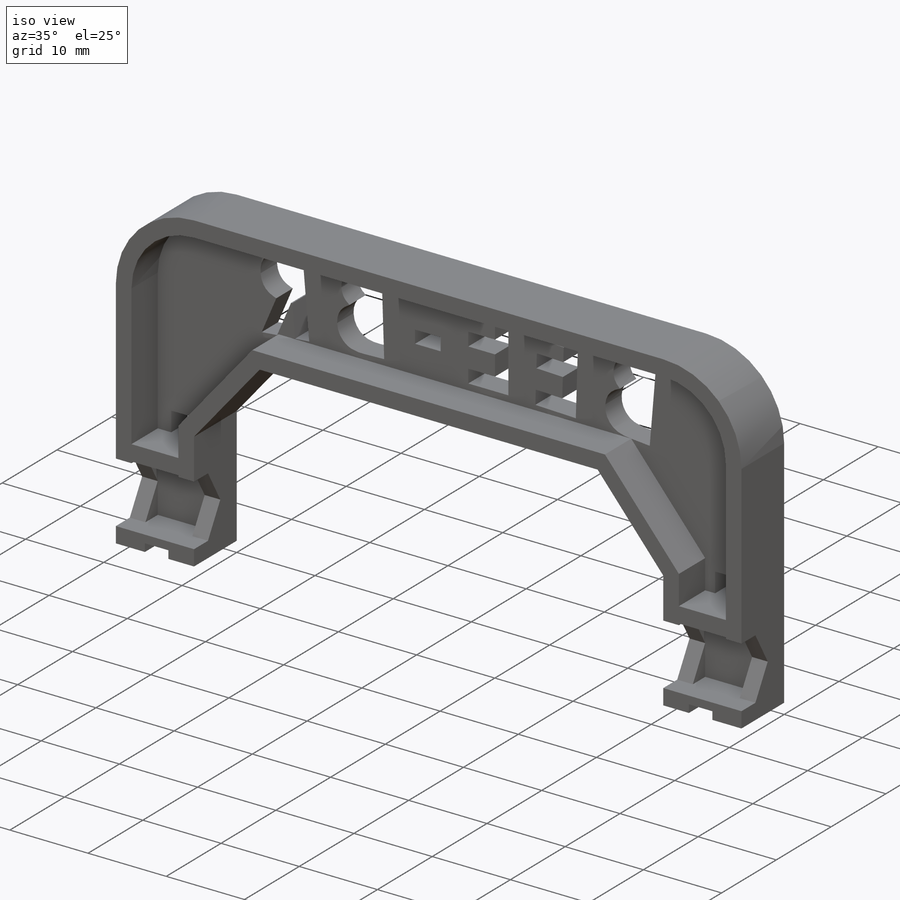
[diagram: iso view]
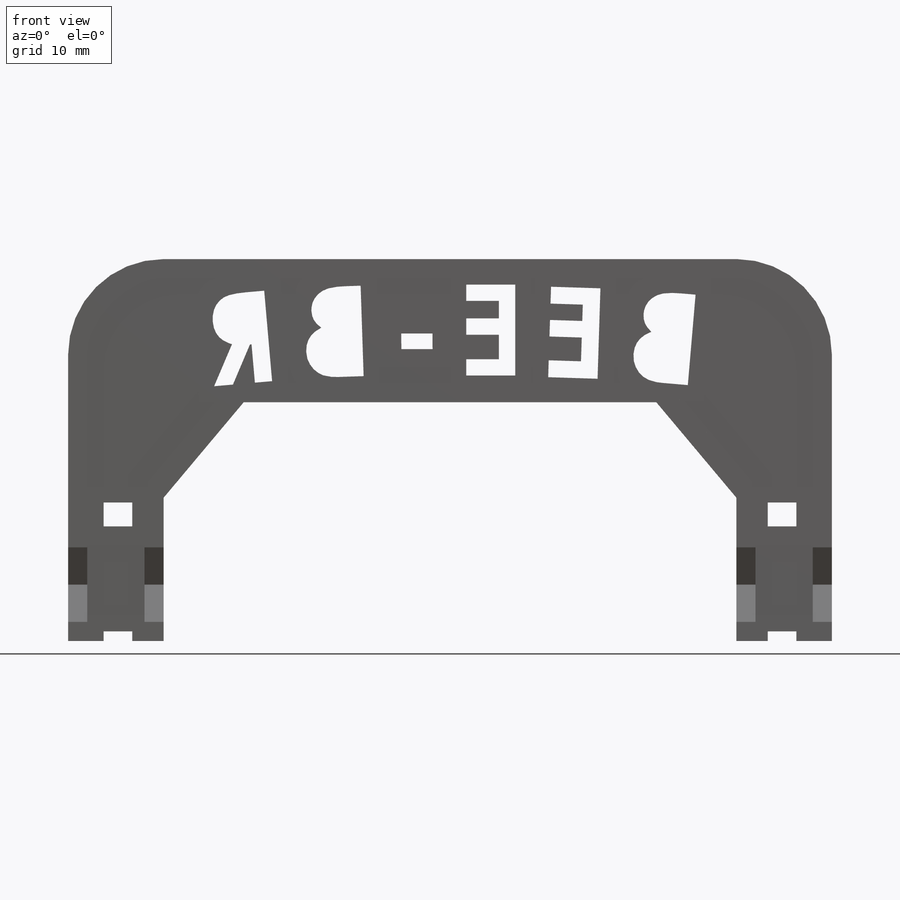
[diagram: front view]
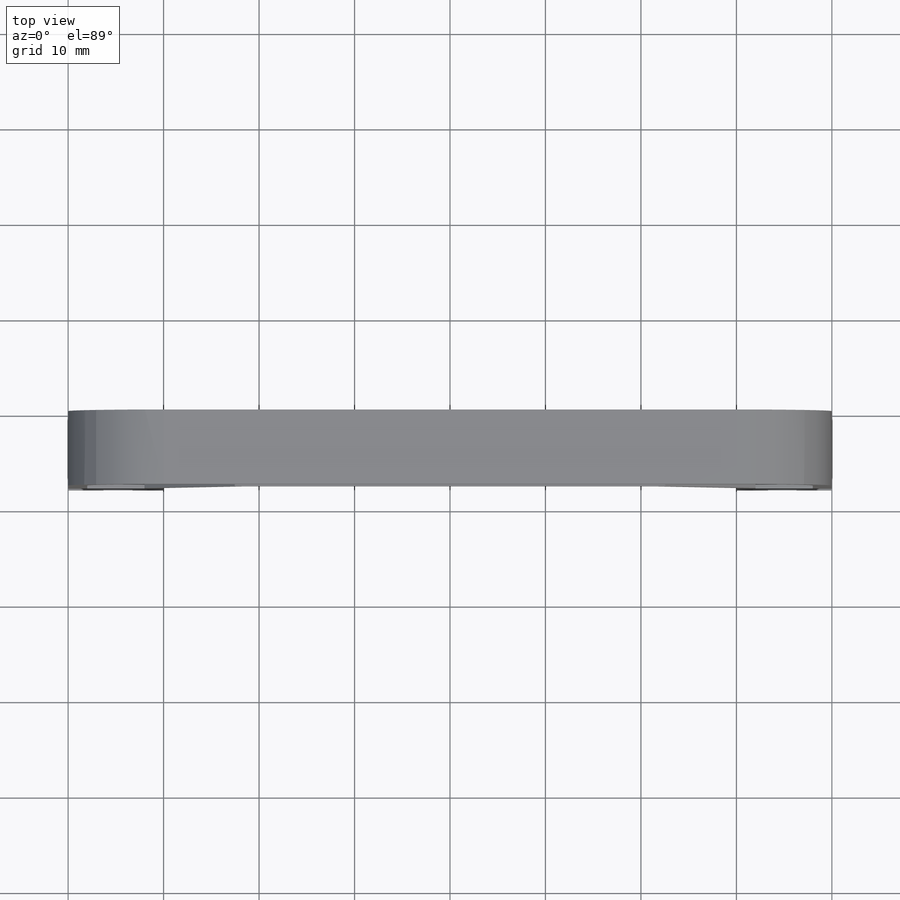
[diagram: top view]
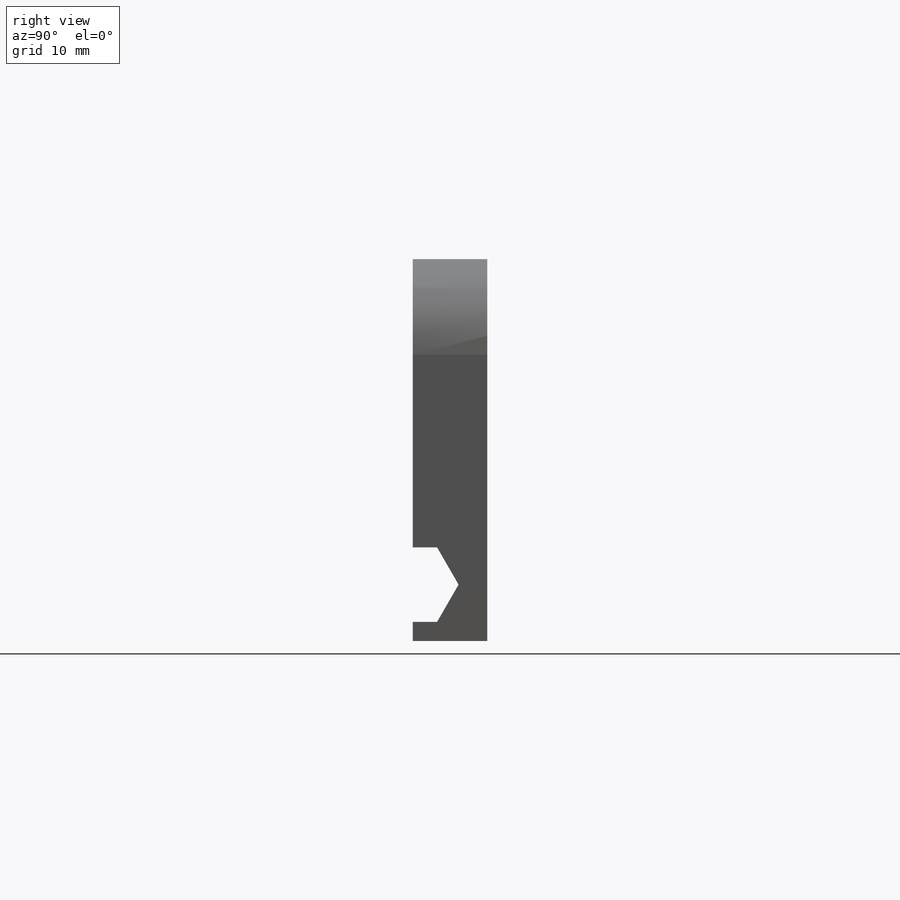
[diagram: right view]
SOLIDWORKS PART (.sldprt)
format: sldprt  version: not decoded by parser v0  size: 541,184 bytes
history: native  units: mm
features: sketch x9, cut_extrude x4, plane x3, extrude x3, delete_body x3, material x1, mirror x1 (+13 scaffold rows collapsed)
feature tree (37):
  scaffold x13  (default folders/planes/origin — collapsed)
  material  "Material <não especificado>"
  plane  "Plano frontal"
  plane  "Plano superior"
  plane  "Plano direito"
  sketch  "Esboço1"  dims[c1.D10=10.0mm c1.D1=80.0mm c1.D2=10.0mm c1.D3=10.0mm c1.D4=25.0mm c2.D2=10.0mm c2.D3=10.0mm c2.D5=~31.243213mm c3.D5=130.0deg c3.D6=~20.567716mm c4.D6=140.0deg c5.D6=15.0mm c5.D7=15.0mm c5.D8=15.0mm c5.D9=~43.76809mm c6.D9=130.0deg c6.D10=80.0mm c6.D12=2.0mm c6.D13=8.0mm c6.D11=2.0mm]
  extrude  "Ressalto-extrusão1"  Depth=3mm
  extrude  "Ressalto-extrusão2"  [1 undecoded]
  sketch  "Esboço1<4>"  dims[D1=7.8mm]
  extrude  "Ressalto-extrusão3"  [1 undecoded]
  sketch  "Esboço1<5>"  dims[D1=6.5mm D2=1.0mm]
  sketch  "Esboço2"  dims[D1=7.8mm D2=3.0mm]
  cut_extrude  "Corte-extrusão1"  [1 undecoded]
  sketch  "Esboço3"
  cut_extrude  "Corte-extrusão2"  Depth=90.8mm
  delete_body  "Corpo-Excluir1"
  delete_body  "Corpo-Excluir2"
  sketch  "Esboço4"
  sketch  "Esboço5"
  delete_body  "Corpo-Excluir3"
  sketch  "Esboço6"
  cut_extrude  "Corte-extrusão3"  [1 undecoded]
  sketch  "Esboço8"  dims[D1=3.0mm D2=3.0mm D3=1.0mm D4=2.5mm]
  cut_extrude  "Corte-extrusão4"  Depth=19mm
  mirror  "Espelhar1"
decode coverage: 8 of 20 modeling features carry decoded parameters
note: ~ marks probable driven/reference dimensions
note: 4 parameter values undecoded
summary: no parameter record found for 4 features
note: suppression state not decoded; provenance and decode notes live in map.json
